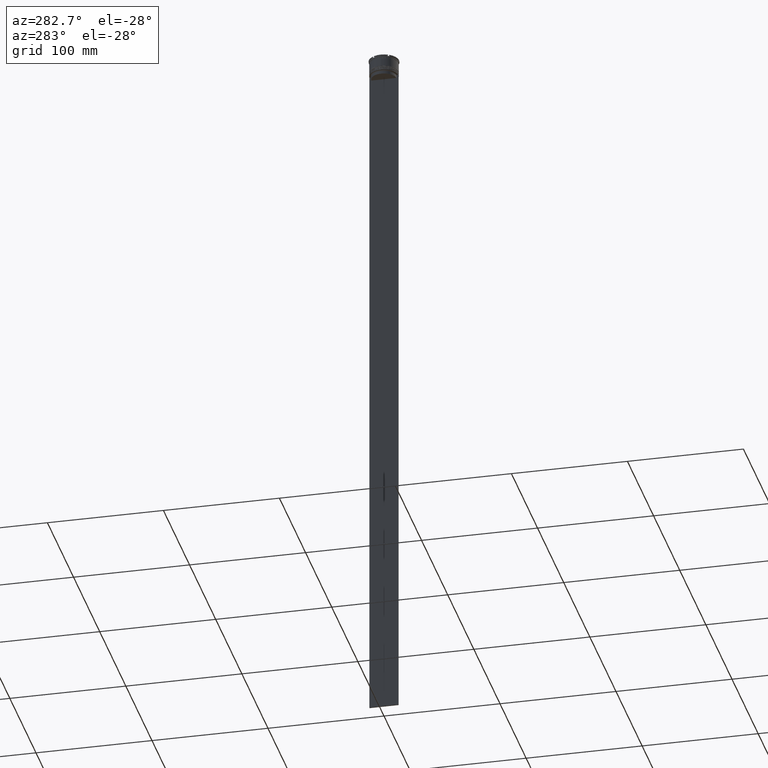
[diagram: clean part render]
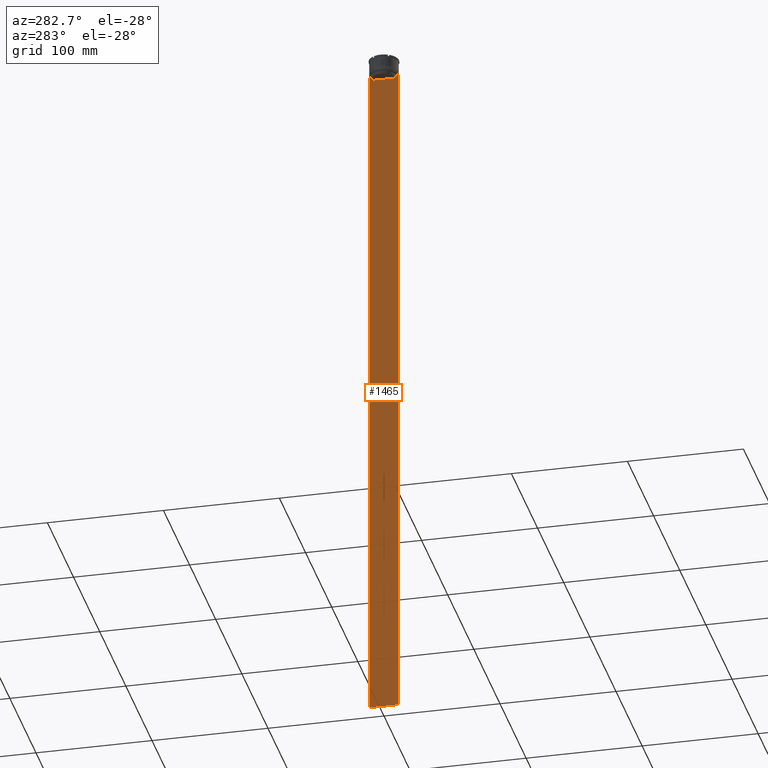
[diagram: same view with one face highlighted and labeled with its STEP entity id]
A machine part, auxiliary view. The second image highlights one B-rep face of the part: STEP entity #1465.
In plain terms, the highlighted planar face has unit normal (-1, 0, 0).
Its self-contained STEP definition (entity closure, byte-faithful):
#40 = LINE ( 'NONE', #1633, #73 ) ;
#73 = VECTOR ( 'NONE', #470, 1000.000000000000000 ) ;
#115 = ORIENTED_EDGE ( 'NONE', *, *, #717, .F. ) ;
#176 = CARTESIAN_POINT ( 'NONE',  ( -0.5000000000000000000, 11.05536450345590538, -14.33333719074559376 ) ) ;
#208 = VECTOR ( 'NONE', #2640, 1000.000000000000000 ) ;
#213 = B_SPLINE_CURVE_WITH_KNOTS ( 'NONE', 3,
 ( #2707, #285, #937, #1842 ),
 .UNSPECIFIED., .F., .F.,
 ( 4, 4 ),
 ( 0.05041323384703226551, 0.05112713601261605068 ),
 .UNSPECIFIED. ) ;
#260 = VERTEX_POINT ( 'NONE', #1778 ) ;
#285 = CARTESIAN_POINT ( 'NONE',  ( -0.5000000000000000000, -11.05536450423839234, -14.33333718996393102 ) ) ;
#306 = CARTESIAN_POINT ( 'NONE',  ( -0.5000000000000000000, -12.49999999999999289, 11.01999200639360765 ) ) ;
#370 = VERTEX_POINT ( 'NONE', #444 ) ;
#388 = EDGE_LOOP ( 'NONE', ( #824, #508, #686, #2235, #2031, #2135, #2521, #2708, #766, #820, #115, #1314 ) ) ;
#411 = EDGE_CURVE ( 'NONE', #747, #1991, #2522, .T. ) ;
#418 = DIRECTION ( 'NONE',  ( 0.000000000000000000, -1.000000000000000000, 0.000000000000000000 ) ) ;
#444 = CARTESIAN_POINT ( 'NONE',  ( -0.5000000000000000000, -12.49999999999999289, -14.00000000000000178 ) ) ;
#470 = DIRECTION ( 'NONE',  ( -0.000000000000000000, -0.000000000000000000, 1.000000000000000000 ) ) ;
#508 = ORIENTED_EDGE ( 'NONE', *, *, #411, .F. ) ;
#545 = CARTESIAN_POINT ( 'NONE',  ( -0.5000000000000000000, 12.50000000000000711, -614.0000000000000000 ) ) ;
#583 = VERTEX_POINT ( 'NONE', #545 ) ;
#585 = CARTESIAN_POINT ( 'NONE',  ( -0.5000000000000000000, -12.49999999999999289, -14.00000000000000178 ) ) ;
#623 = VERTEX_POINT ( 'NONE', #771 ) ;
#686 = ORIENTED_EDGE ( 'NONE', *, *, #748, .F. ) ;
#717 = EDGE_CURVE ( 'NONE', #1198, #1766, #2194, .T. ) ;
#747 = VERTEX_POINT ( 'NONE', #2832 ) ;
#748 = EDGE_CURVE ( 'NONE', #1811, #747, #1271, .T. ) ;
#766 = ORIENTED_EDGE ( 'NONE', *, *, #1774, .F. ) ;
#767 = LINE ( 'NONE', #825, #1183 ) ;
#771 = CARTESIAN_POINT ( 'NONE',  ( -0.5000000000000000000, -12.49999999999999289, -614.0000000000000000 ) ) ;
#804 = VERTEX_POINT ( 'NONE', #1747 ) ;
#807 = VECTOR ( 'NONE', #1446, 1000.000000000000000 ) ;
#820 = ORIENTED_EDGE ( 'NONE', *, *, #2144, .F. ) ;
#824 = ORIENTED_EDGE ( 'NONE', *, *, #1484, .F. ) ;
#825 = CARTESIAN_POINT ( 'NONE',  ( -0.5000000000000000000, -12.49999999999999289, -14.00000000000000178 ) ) ;
#834 = CARTESIAN_POINT ( 'NONE',  ( -0.5000000000000000000, 11.22219891375843304, -14.16667035472756808 ) ) ;
#935 = DIRECTION ( 'NONE',  ( 0.000000000000000000, -1.000000000000000000, 0.000000000000000000 ) ) ;
#937 = CARTESIAN_POINT ( 'NONE',  ( -0.5000000000000000000, -11.22219891450652973, -14.16667035398018903 ) ) ;
#1015 = FACE_OUTER_BOUND ( 'NONE', #388, .T. ) ;
#1035 = VECTOR ( 'NONE', #2516, 1000.000000000000000 ) ;
#1108 = VERTEX_POINT ( 'NONE', #2560 ) ;
#1183 = VECTOR ( 'NONE', #418, 1000.000000000000000 ) ;
#1185 = CARTESIAN_POINT ( 'NONE',  ( -0.5000000000000000000, -12.49999999999999289, -14.00000000000000178 ) ) ;
#1198 = VERTEX_POINT ( 'NONE', #1266 ) ;
#1245 = CARTESIAN_POINT ( 'NONE',  ( -0.5000000000000000000, -12.49999999999999289, 11.01999200639360765 ) ) ;
#1249 = CARTESIAN_POINT ( 'NONE',  ( -0.5000000000000000000, -10.88852607105296322, -14.50000000000000000 ) ) ;
#1266 = CARTESIAN_POINT ( 'NONE',  ( -0.5000000000000000000, 10.88852607105296144, -17.00000000000000000 ) ) ;
#1271 = LINE ( 'NONE', #1720, #1835 ) ;
#1314 = ORIENTED_EDGE ( 'NONE', *, *, #1381, .F. ) ;
#1381 = EDGE_CURVE ( 'NONE', #804, #1198, #1615, .T. ) ;
#1446 = DIRECTION ( 'NONE',  ( 0.000000000000000000, -1.000000000000000000, 0.000000000000000000 ) ) ;
#1459 = CARTESIAN_POINT ( 'NONE',  ( -0.5000000000000000000, 11.38902980942626719, -14.00000000000000178 ) ) ;
#1465 = ADVANCED_FACE ( 'NONE', ( #1015 ), #2810, .T. ) ;
#1484 = EDGE_CURVE ( 'NONE', #1991, #804, #1883, .T. ) ;
#1515 = CARTESIAN_POINT ( 'NONE',  ( -0.5000000000000000000, 10.90000000000000213, -17.00000000000000000 ) ) ;
#1549 = LINE ( 'NONE', #1754, #208 ) ;
#1615 = LINE ( 'NONE', #1629, #1035 ) ;
#1629 = CARTESIAN_POINT ( 'NONE',  ( -0.5000000000000000000, 10.88852607105296322, 0.000000000000000000 ) ) ;
#1633 = CARTESIAN_POINT ( 'NONE',  ( -0.5000000000000000000, -10.88852607105296322, 0.000000000000000000 ) ) ;
#1651 = EDGE_CURVE ( 'NONE', #623, #583, #1549, .T. ) ;
#1691 = DIRECTION ( 'NONE',  ( 0.000000000000000000, 0.000000000000000000, -1.000000000000000000 ) ) ;
#1720 = CARTESIAN_POINT ( 'NONE',  ( -0.5000000000000000000, -12.49999999999999289, -14.00000000000000178 ) ) ;
#1747 = CARTESIAN_POINT ( 'NONE',  ( -0.5000000000000000000, 10.88852607105296322, -14.50000000000000000 ) ) ;
#1754 = CARTESIAN_POINT ( 'NONE',  ( -0.5000000000000000000, -12.49999999999999289, -614.0000000000000000 ) ) ;
#1766 = VERTEX_POINT ( 'NONE', #2290 ) ;
#1774 = EDGE_CURVE ( 'NONE', #2613, #260, #213, .T. ) ;
#1778 = CARTESIAN_POINT ( 'NONE',  ( -0.5000000000000000000, -11.38902980942626719, -14.00000000000000178 ) ) ;
#1810 = EDGE_CURVE ( 'NONE', #1811, #583, #2363, .T. ) ;
#1811 = VERTEX_POINT ( 'NONE', #2777 ) ;
#1835 = VECTOR ( 'NONE', #2605, 1000.000000000000000 ) ;
#1842 = CARTESIAN_POINT ( 'NONE',  ( -0.5000000000000000000, -11.38902980942626719, -14.00000000000000178 ) ) ;
#1883 = B_SPLINE_CURVE_WITH_KNOTS ( 'NONE', 3,
 ( #1459, #834, #176, #2826 ),
 .UNSPECIFIED., .F., .F.,
 ( 4, 4 ),
 ( 0.01935560801904634073, 0.02006307108468586772 ),
 .UNSPECIFIED. ) ;
#1905 = LINE ( 'NONE', #306, #2815 ) ;
#1913 = DIRECTION ( 'NONE',  ( 0.000000000000000000, 0.000000000000000000, 1.000000000000000000 ) ) ;
#1974 = VECTOR ( 'NONE', #935, 1000.000000000000000 ) ;
#1991 = VERTEX_POINT ( 'NONE', #1998 ) ;
#1998 = CARTESIAN_POINT ( 'NONE',  ( -0.5000000000000000000, 11.38902980942626719, -14.00000000000000178 ) ) ;
#2031 = ORIENTED_EDGE ( 'NONE', *, *, #1651, .F. ) ;
#2066 = VECTOR ( 'NONE', #2212, 1000.000000000000000 ) ;
#2074 = VECTOR ( 'NONE', #1691, 1000.000000000000000 ) ;
#2135 = ORIENTED_EDGE ( 'NONE', *, *, #2643, .F. ) ;
#2141 = CARTESIAN_POINT ( 'NONE',  ( -0.5000000000000000000, 12.50000000000000711, 11.01999200639360765 ) ) ;
#2144 = EDGE_CURVE ( 'NONE', #1766, #2613, #40, .T. ) ;
#2145 = DIRECTION ( 'NONE',  ( -1.000000000000000000, 0.000000000000000000, 0.000000000000000000 ) ) ;
#2194 = LINE ( 'NONE', #1515, #2066 ) ;
#2212 = DIRECTION ( 'NONE',  ( 0.000000000000000000, -1.000000000000000000, 0.000000000000000000 ) ) ;
#2235 = ORIENTED_EDGE ( 'NONE', *, *, #1810, .T. ) ;
#2258 = AXIS2_PLACEMENT_3D ( 'NONE', #1245, #2145, #1913 ) ;
#2290 = CARTESIAN_POINT ( 'NONE',  ( -0.5000000000000000000, -10.88852607105296144, -17.00000000000000000 ) ) ;
#2354 = DIRECTION ( 'NONE',  ( 0.000000000000000000, 0.000000000000000000, -1.000000000000000000 ) ) ;
#2363 = LINE ( 'NONE', #2141, #2074 ) ;
#2516 = DIRECTION ( 'NONE',  ( 0.000000000000000000, 0.000000000000000000, -1.000000000000000000 ) ) ;
#2521 = ORIENTED_EDGE ( 'NONE', *, *, #2764, .F. ) ;
#2522 = LINE ( 'NONE', #1185, #1974 ) ;
#2529 = LINE ( 'NONE', #585, #807 ) ;
#2560 = CARTESIAN_POINT ( 'NONE',  ( -0.5000000000000000000, -12.38991525394746773, -14.00000000000000178 ) ) ;
#2605 = DIRECTION ( 'NONE',  ( 0.000000000000000000, -1.000000000000000000, 0.000000000000000000 ) ) ;
#2613 = VERTEX_POINT ( 'NONE', #1249 ) ;
#2623 = EDGE_CURVE ( 'NONE', #260, #1108, #2529, .T. ) ;
#2640 = DIRECTION ( 'NONE',  ( 0.000000000000000000, 1.000000000000000000, 0.000000000000000000 ) ) ;
#2643 = EDGE_CURVE ( 'NONE', #370, #623, #1905, .T. ) ;
#2707 = CARTESIAN_POINT ( 'NONE',  ( -0.5000000000000000000, -10.88852607105296322, -14.50000000000000000 ) ) ;
#2708 = ORIENTED_EDGE ( 'NONE', *, *, #2623, .F. ) ;
#2764 = EDGE_CURVE ( 'NONE', #1108, #370, #767, .T. ) ;
#2777 = CARTESIAN_POINT ( 'NONE',  ( -0.5000000000000000000, 12.50000000000000711, -14.00000000000000178 ) ) ;
#2810 = PLANE ( 'NONE',  #2258 ) ;
#2815 = VECTOR ( 'NONE', #2354, 1000.000000000000000 ) ;
#2826 = CARTESIAN_POINT ( 'NONE',  ( -0.5000000000000000000, 10.88852607105296322, -14.50000000000000000 ) ) ;
#2832 = CARTESIAN_POINT ( 'NONE',  ( -0.5000000000000000000, 12.38991525394746773, -14.00000000000000178 ) ) ;